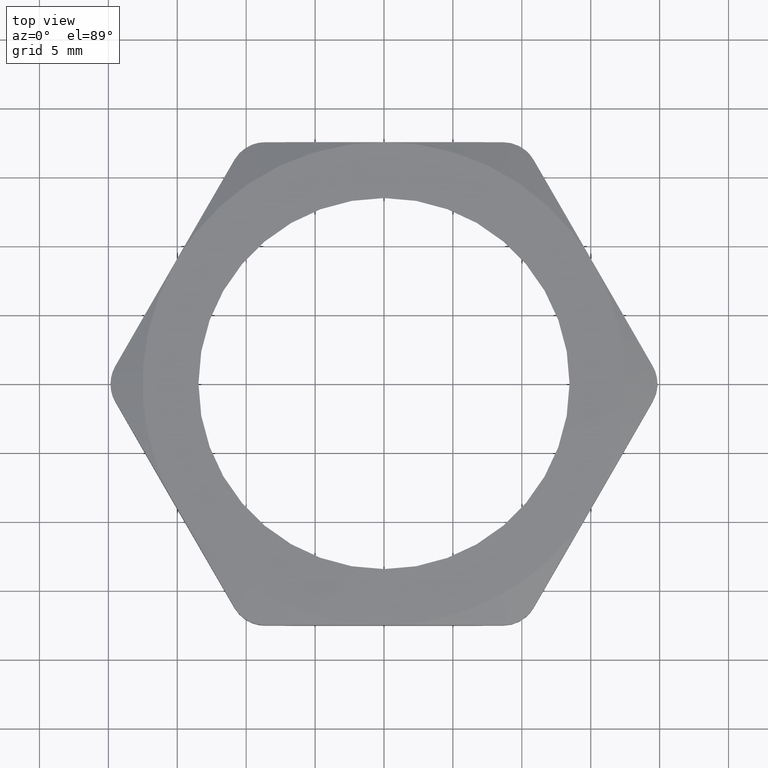
[diagram: clean part render]
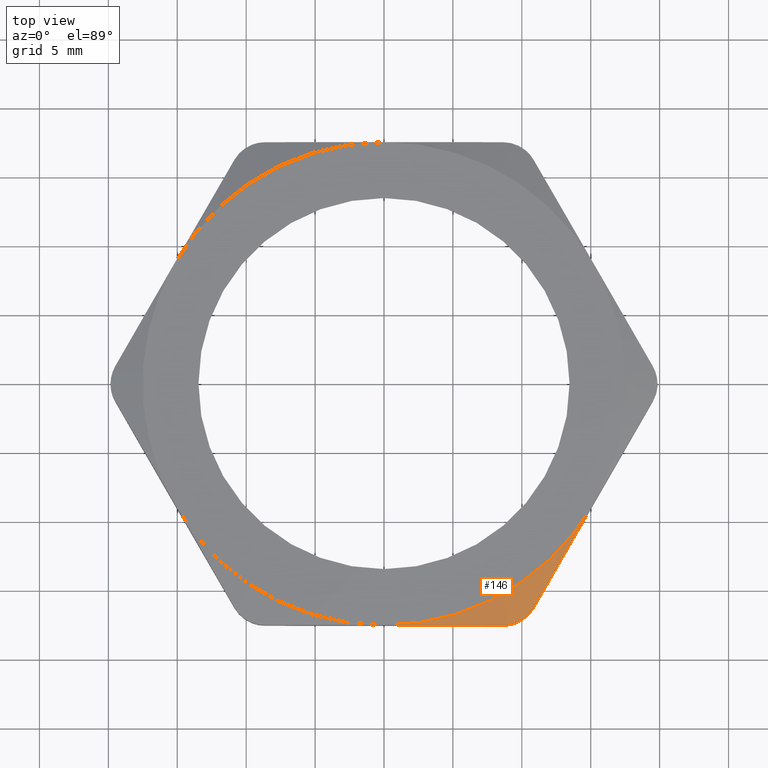
[diagram: same view with one face highlighted and labeled with its STEP entity id]
A machine part, top view. The second image highlights one B-rep face of the part: STEP entity #146.
In plain terms, the highlighted conical surface has half-angle 70 deg.
Its self-contained STEP definition (entity closure, byte-faithful):
#76 = EDGE_CURVE ( 'NONE', #703, #765, #943, .T. ) ;
#96 = EDGE_CURVE ( 'NONE', #755, #701, #990, .T. ) ;
#146 = ADVANCED_FACE ( 'NONE', ( #1143 ), #1142, .T. ) ;
#147 = EDGE_LOOP ( 'NONE', ( #148, #149, #150, #151 ) ) ;
#148 = ORIENTED_EDGE ( 'NONE', *, *, #754, .T. ) ;
#149 = ORIENTED_EDGE ( 'NONE', *, *, #76, .F. ) ;
#150 = ORIENTED_EDGE ( 'NONE', *, *, #704, .T. ) ;
#151 = ORIENTED_EDGE ( 'NONE', *, *, #96, .F. ) ;
#701 = VERTEX_POINT ( 'NONE', #2106 ) ;
#703 = VERTEX_POINT ( 'NONE', #2105 ) ;
#704 = EDGE_CURVE ( 'NONE', #703, #701, #2150, .T. ) ;
#754 = EDGE_CURVE ( 'NONE', #755, #765, #2283, .T. ) ;
#755 = VERTEX_POINT ( 'NONE', #2282 ) ;
#765 = VERTEX_POINT ( 'NONE', #2308 ) ;
#930 = CARTESIAN_POINT ( 'NONE',  ( 0.3406366588218791600, -0.6899999999999997200, 0.1110636371749959400 ) ) ;
#931 = CARTESIAN_POINT ( 'NONE',  ( 0.3493660672406744300, -0.6899999999999997200, 0.1096571612238949300 ) ) ;
#932 = CARTESIAN_POINT ( 'NONE',  ( 0.3580805060687475800, -0.6888497982877723700, 0.1085841355107624300 ) ) ;
#933 = CARTESIAN_POINT ( 'NONE',  ( 0.3748762061836549100, -0.6843568960106577400, 0.1071482369755272400 ) ) ;
#934 = CARTESIAN_POINT ( 'NONE',  ( 0.3831331229465160200, -0.6809402299436575500, 0.1067777116515708600 ) ) ;
#935 = CARTESIAN_POINT ( 'NONE',  ( 0.3982354302608207000, -0.6722098316141470500, 0.1067807563367343100 ) ) ;
#936 = CARTESIAN_POINT ( 'NONE',  ( 0.4052722766601824500, -0.6668019401309782700, 0.1071498117442873700 ) ) ;
#937 = CARTESIAN_POINT ( 'NONE',  ( 0.4176091670460270700, -0.6544323992949591100, 0.1085975396245050000 ) ) ;
#938 = CARTESIAN_POINT ( 'NONE',  ( 0.4228749190277798500, -0.6475591549973094300, 0.1096572978649157000 ) ) ;
#939 = CARTESIAN_POINT ( 'NONE',  ( 0.4272391992003229900, -0.6399999999999996800, 0.1110636371749959700 ) ) ;
#943 = B_SPLINE_CURVE_WITH_KNOTS ( 'NONE', 3,
 ( #939, #938, #937, #936, #935, #934, #933, #932, #931, #930 ),
 .UNSPECIFIED., .F., .F.,
 ( 4, 2, 2, 2, 4 ),
 ( 2.306673999674968100E-007, 0.0006645828425246637900, 0.001328935017649360100, 0.001993287192774056500, 0.002657639367898753000 ),
 .UNSPECIFIED. ) ;
#986 = DIRECTION ( 'NONE',  ( 1.000000000000000000, 0.0000000000000000000, 0.0000000000000000000 ) ) ;
#987 = DIRECTION ( 'NONE',  ( 0.0000000000000000000, 0.0000000000000000000, 1.000000000000000000 ) ) ;
#988 = CARTESIAN_POINT ( 'NONE',  ( 0.0000000000000000000, 0.0000000000000000000, 0.1400000000000000100 ) ) ;
#989 = AXIS2_PLACEMENT_3D ( 'NONE', #988, #987, #986 ) ;
#990 = CIRCLE ( 'NONE', #989, 0.6899999999999998400 ) ;
#1081 = CARTESIAN_POINT ( 'NONE',  ( 0.0000000000000000000, 0.0000000000000000000, 0.1400000000000000100 ) ) ;
#1138 = DIRECTION ( 'NONE',  ( 1.000000000000000000, 0.0000000000000000000, 0.0000000000000000000 ) ) ;
#1139 = DIRECTION ( 'NONE',  ( 0.0000000000000000000, 0.0000000000000000000, -1.000000000000000000 ) ) ;
#1140 = AXIS2_PLACEMENT_3D ( 'NONE', #1081, #1139, #1138 ) ;
#1142 = CONICAL_SURFACE ( 'NONE', #1140, 0.6899999999999998400, 1.221730476396033500 ) ;
#1143 = FACE_OUTER_BOUND ( 'NONE', #147, .T. ) ;
#2105 = CARTESIAN_POINT ( 'NONE',  ( 0.4272391992003229900, -0.6399999999999996800, 0.1110636371749959700 ) ) ;
#2106 = CARTESIAN_POINT ( 'NONE',  ( 0.5975575286112625500, -0.3449999999999998600, 0.1400000000000000100 ) ) ;
#2142 = CARTESIAN_POINT ( 'NONE',  ( 0.5975575286112625500, -0.3449999999999998600, 0.1400000000000000100 ) ) ;
#2143 = CARTESIAN_POINT ( 'NONE',  ( 0.5691711403761059400, -0.3941666666666664400, 0.1400000000000000700 ) ) ;
#2144 = CARTESIAN_POINT ( 'NONE',  ( 0.5407847521409492300, -0.4433333333333331300, 0.1374142085365008000 ) ) ;
#2145 = CARTESIAN_POINT ( 'NONE',  ( 0.4840119756706360900, -0.5416666666666664100, 0.1275103342379991000 ) ) ;
#2146 = CARTESIAN_POINT ( 'NONE',  ( 0.4556255874354794300, -0.5908333333333329900, 0.1202108257302713800 ) ) ;
#2147 = CARTESIAN_POINT ( 'NONE',  ( 0.4272391992003229900, -0.6399999999999996800, 0.1110636371749959700 ) ) ;
#2150 = B_SPLINE_CURVE_WITH_KNOTS ( 'NONE', 3,
 ( #2147, #2146, #2145, #2144, #2143, #2142 ),
 .UNSPECIFIED., .F., .F.,
 ( 4, 2, 4 ),
 ( 2.309401076748848800E-007, 0.004326316507145539300, 0.008652402074183402500 ),
 .UNSPECIFIED. ) ;
#2276 = CARTESIAN_POINT ( 'NONE',  ( 0.3406366588218791600, -0.6899999999999997200, 0.1110636371749959400 ) ) ;
#2277 = CARTESIAN_POINT ( 'NONE',  ( 0.2840149951219179100, -0.6899999999999996100, 0.1201864785503471700 ) ) ;
#2278 = CARTESIAN_POINT ( 'NONE',  ( 0.2273291483130263100, -0.6899999999999995000, 0.1274829044619420200 ) ) ;
#2279 = CARTESIAN_POINT ( 'NONE',  ( 0.1137931150430128400, -0.6899999999999998400, 0.1373992535861768800 ) ) ;
#2280 = CARTESIAN_POINT ( 'NONE',  ( 0.05694225467905119500, -0.6899999999999997200, 0.1400000000000000100 ) ) ;
#2281 = CARTESIAN_POINT ( 'NONE',  ( 1.182924880895400500E-016, -0.6899999999999997200, 0.1400000000000000100 ) ) ;
#2282 = CARTESIAN_POINT ( 'NONE',  ( 1.182924880895400500E-016, -0.6899999999999997200, 0.1400000000000000100 ) ) ;
#2283 = B_SPLINE_CURVE_WITH_KNOTS ( 'NONE', 3,
 ( #2281, #2280, #2279, #2278, #2277, #2276 ),
 .UNSPECIFIED., .F., .F.,
 ( 4, 2, 4 ),
 ( 0.02612600141665983800, 0.03049775040787853700, 0.03486949939909724000 ),
 .UNSPECIFIED. ) ;
#2308 = CARTESIAN_POINT ( 'NONE',  ( 0.3406366588218791600, -0.6899999999999997200, 0.1110636371749959400 ) ) ;